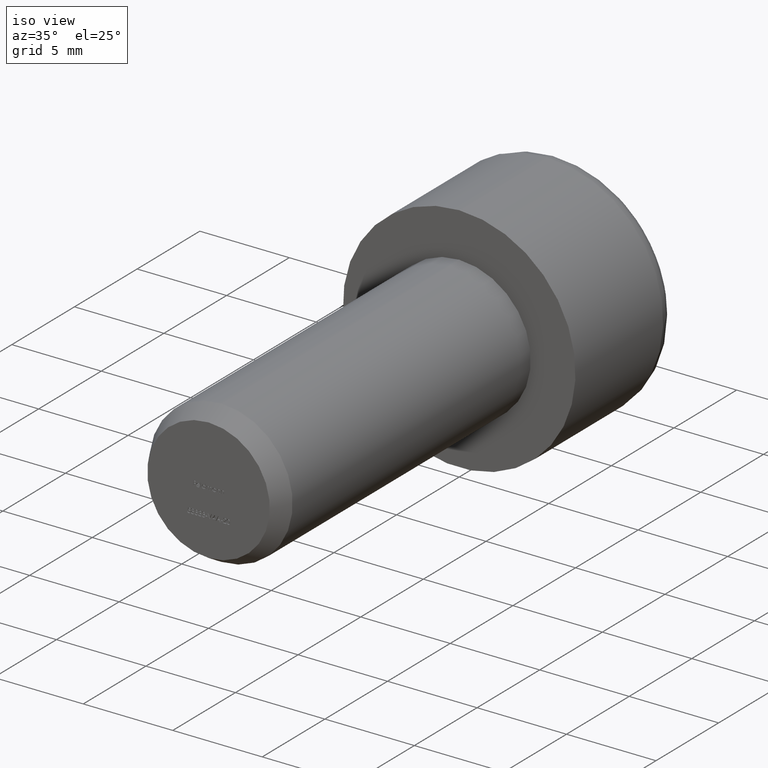
[diagram: clean part render]
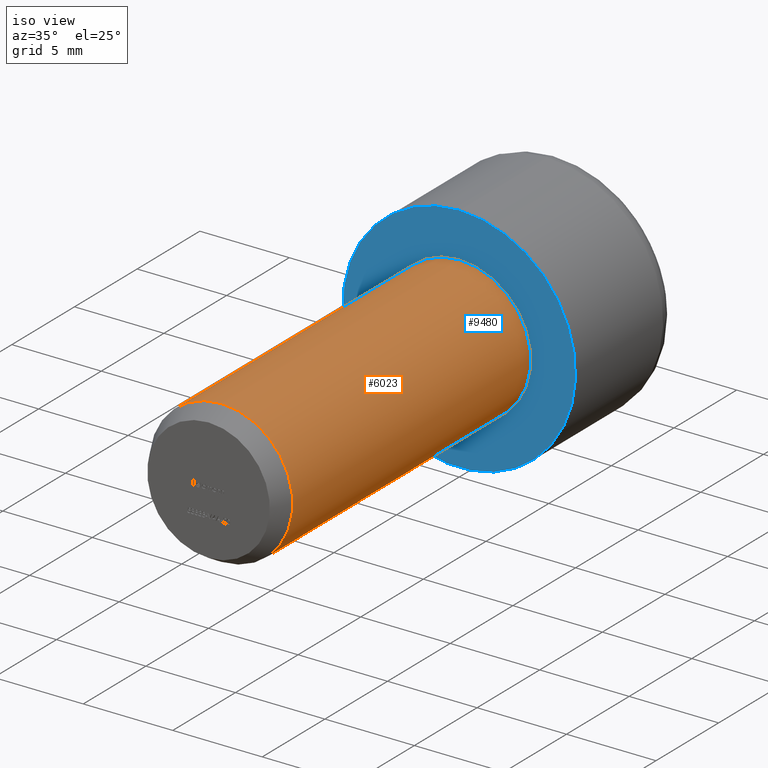
[diagram: same view with the hole feature highlighted: cylindrical wall and planar end face, labeled with their STEP entity ids]
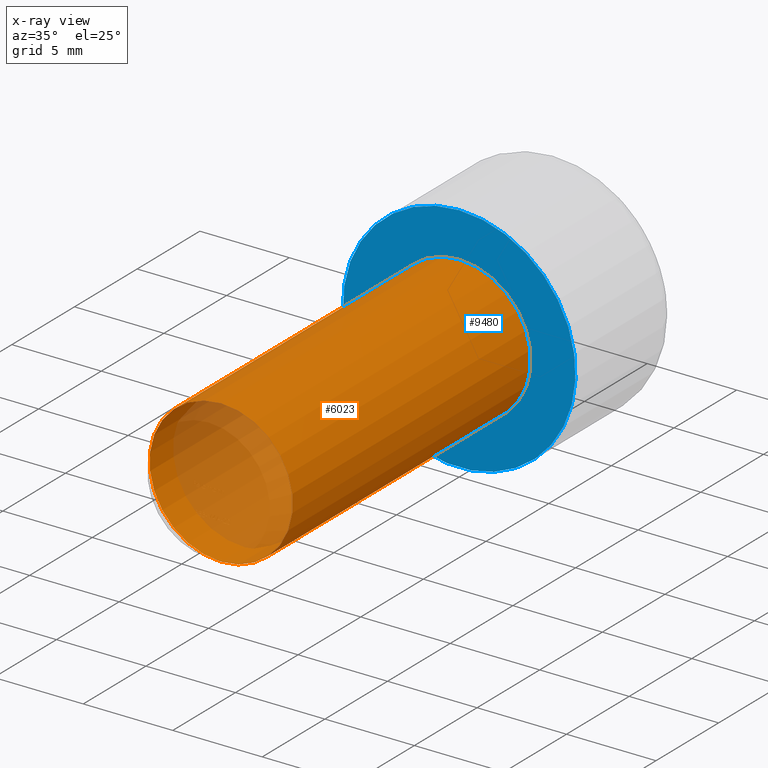
[diagram: x-ray of the same camera — body ghosted, the hole faces saturated]
A machine part, iso view. The highlighted faces form one hole feature of diameter 8 mm: the cylindrical wall (entity #6023, orange) and its adjacent planar end face (entity #9480, blue) — they share a circular edge in the B-rep.
The next image is the same camera in x-ray (body ghosted, the hole faces saturated) — the bore reads through the body.
Wall:
#563 = CARTESIAN_POINT ( 'NONE',  ( 0.0000000000000000000, 0.0000000000000000000, 0.0000000000000000000 ) ) ;
#669 = EDGE_CURVE ( 'NONE', #11564, #11564, #1719, .T. ) ;
#1719 = CIRCLE ( 'NONE', #2336, 4.000000000000000000 ) ;
#2336 = AXIS2_PLACEMENT_3D ( 'NONE', #563, #11788, #6859 ) ;
#2593 = DIRECTION ( 'NONE',  ( 0.0000000000000000000, 0.0000000000000000000, -1.000000000000000000 ) ) ;
#3044 = VERTEX_POINT ( 'NONE', #8148 ) ;
#3777 = FACE_OUTER_BOUND ( 'NONE', #11242, .T. ) ;
#3858 = AXIS2_PLACEMENT_3D ( 'NONE', #14947, #3965, #2593 ) ;
#3965 = DIRECTION ( 'NONE',  ( 0.0000000000000000000, 1.000000000000000000, 0.0000000000000000000 ) ) ;
#6023 = ADVANCED_FACE ( 'NONE', ( #13419, #3777 ), #15951, .T. ) ;
#6859 = DIRECTION ( 'NONE',  ( 0.0000000000000000000, 0.0000000000000000000, 1.000000000000000000 ) ) ;
#7625 = EDGE_LOOP ( 'NONE', ( #11883 ) ) ;
#8148 = CARTESIAN_POINT ( 'NONE',  ( 0.0000000000000000000, -18.99999999999999600, -4.000000000000000000 ) ) ;
#8881 = EDGE_CURVE ( 'NONE', #3044, #3044, #15550, .T. ) ;
#9622 = AXIS2_PLACEMENT_3D ( 'NONE', #10140, #10196, #13983 ) ;
#10140 = CARTESIAN_POINT ( 'NONE',  ( 0.0000000000000000000, -20.00000000000000000, 0.0000000000000000000 ) ) ;
#10196 = DIRECTION ( 'NONE',  ( -0.0000000000000000000, 1.000000000000000000, -0.0000000000000000000 ) ) ;
#10575 = CARTESIAN_POINT ( 'NONE',  ( 0.0000000000000000000, 0.0000000000000000000, 4.000000000000000000 ) ) ;
#11242 = EDGE_LOOP ( 'NONE', ( #12213 ) ) ;
#11564 = VERTEX_POINT ( 'NONE', #10575 ) ;
#11788 = DIRECTION ( 'NONE',  ( -0.0000000000000000000, -1.000000000000000000, -0.0000000000000000000 ) ) ;
#11883 = ORIENTED_EDGE ( 'NONE', *, *, #8881, .T. ) ;
#12213 = ORIENTED_EDGE ( 'NONE', *, *, #669, .T. ) ;
#13419 = FACE_OUTER_BOUND ( 'NONE', #7625, .T. ) ;
#13983 = DIRECTION ( 'NONE',  ( 0.0000000000000000000, 0.0000000000000000000, 1.000000000000000000 ) ) ;
#14947 = CARTESIAN_POINT ( 'NONE',  ( 0.0000000000000000000, -18.99999999999999600, 0.0000000000000000000 ) ) ;
#15550 = CIRCLE ( 'NONE', #3858, 4.000000000000000000 ) ;
#15951 = CYLINDRICAL_SURFACE ( 'NONE', #9622, 4.000000000000000000 ) ;
End face:
#170 = DIRECTION ( 'NONE',  ( 0.0000000000000000000, 1.000000000000000000, 0.0000000000000000000 ) ) ;
#563 = CARTESIAN_POINT ( 'NONE',  ( 0.0000000000000000000, 0.0000000000000000000, 0.0000000000000000000 ) ) ;
#669 = EDGE_CURVE ( 'NONE', #11564, #11564, #1719, .T. ) ;
#1719 = CIRCLE ( 'NONE', #2336, 4.000000000000000000 ) ;
#2116 = ORIENTED_EDGE ( 'NONE', *, *, #9074, .F. ) ;
#2336 = AXIS2_PLACEMENT_3D ( 'NONE', #563, #11788, #6859 ) ;
#2672 = DIRECTION ( 'NONE',  ( 0.0000000000000000000, -0.0000000000000000000, 1.000000000000000000 ) ) ;
#5137 = CARTESIAN_POINT ( 'NONE',  ( 0.0000000000000000000, 0.0000000000000000000, 0.0000000000000000000 ) ) ;
#5999 = CARTESIAN_POINT ( 'NONE',  ( 0.0000000000000000000, 0.0000000000000000000, 0.0000000000000000000 ) ) ;
#6288 = DIRECTION ( 'NONE',  ( 0.0000000000000000000, 0.0000000000000000000, 1.000000000000000000 ) ) ;
#6354 = AXIS2_PLACEMENT_3D ( 'NONE', #5137, #170, #2672 ) ;
#6859 = DIRECTION ( 'NONE',  ( 0.0000000000000000000, 0.0000000000000000000, 1.000000000000000000 ) ) ;
#7019 = FACE_BOUND ( 'NONE', #8327, .T. ) ;
#8327 = EDGE_LOOP ( 'NONE', ( #15556 ) ) ;
#9074 = EDGE_CURVE ( 'NONE', #12912, #12912, #15918, .T. ) ;
#9382 = CARTESIAN_POINT ( 'NONE',  ( 0.0000000000000000000, 0.0000000000000000000, 6.500000000000000900 ) ) ;
#9480 = ADVANCED_FACE ( 'NONE', ( #7019, #15161 ), #11284, .F. ) ;
#9662 = DIRECTION ( 'NONE',  ( 0.0000000000000000000, 1.000000000000000000, 0.0000000000000000000 ) ) ;
#10500 = AXIS2_PLACEMENT_3D ( 'NONE', #5999, #9662, #6288 ) ;
#10575 = CARTESIAN_POINT ( 'NONE',  ( 0.0000000000000000000, 0.0000000000000000000, 4.000000000000000000 ) ) ;
#11057 = EDGE_LOOP ( 'NONE', ( #2116 ) ) ;
#11284 = PLANE ( 'NONE',  #6354 ) ;
#11564 = VERTEX_POINT ( 'NONE', #10575 ) ;
#11788 = DIRECTION ( 'NONE',  ( -0.0000000000000000000, -1.000000000000000000, -0.0000000000000000000 ) ) ;
#12912 = VERTEX_POINT ( 'NONE', #9382 ) ;
#15161 = FACE_OUTER_BOUND ( 'NONE', #11057, .T. ) ;
#15556 = ORIENTED_EDGE ( 'NONE', *, *, #669, .F. ) ;
#15918 = CIRCLE ( 'NONE', #10500, 6.500000000000000900 ) ;